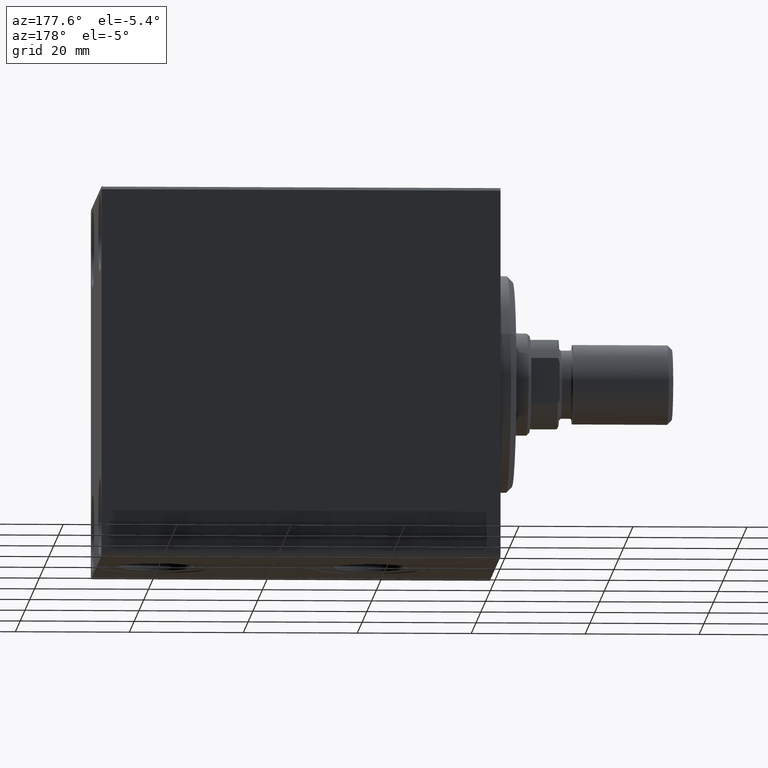
[diagram: clean part render]
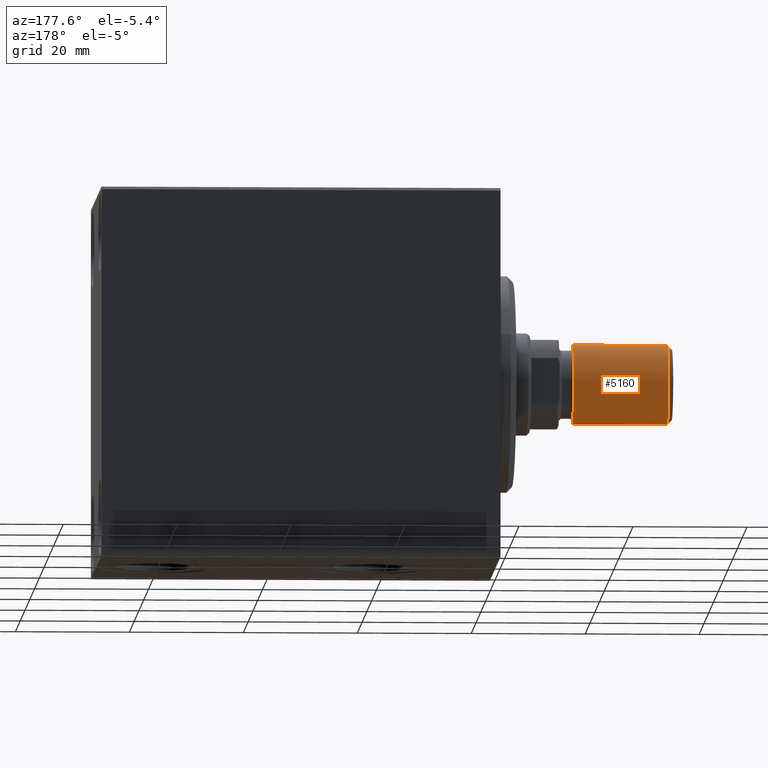
[diagram: same view with one face highlighted and labeled with its STEP entity id]
A machine part, auxiliary view. The second image highlights one B-rep face of the part: STEP entity #5160.
In plain terms, the highlighted cylindrical surface (partial cylindrical patch) has radius 7 mm, axis along (-1, -0, 0).
Its self-contained STEP definition (entity closure, byte-faithful):
#1554 = VERTEX_POINT ( 'NONE', #12833 ) ;
#2514 = DIRECTION ( 'NONE',  ( -0.000000000000000000, -0.000000000000000000, -1.000000000000000000 ) ) ;
#3478 = CARTESIAN_POINT ( 'NONE',  ( -7.000000000000000000, 0.000000000000000000, 0.7999999999999986011 ) ) ;
#4882 = CYLINDRICAL_SURFACE ( 'NONE', #6422, 7.000000000000000000 ) ;
#5101 = DIRECTION ( 'NONE',  ( -0.000000000000000000, -0.000000000000000000, -1.000000000000000000 ) ) ;
#5160 = ADVANCED_FACE ( 'NONE', ( #15218 ), #4882, .T. ) ;
#6422 = AXIS2_PLACEMENT_3D ( 'NONE', #42613, #5101, #42830 ) ;
#6688 = CARTESIAN_POINT ( 'NONE',  ( 7.000000000000000000, 8.572527594031473190E-16, 0.7999999999999986011 ) ) ;
#6759 = VECTOR ( 'NONE', #2514, 1000.000000000000000 ) ;
#10755 = LINE ( 'NONE', #32078, #41043 ) ;
#10816 = VERTEX_POINT ( 'NONE', #6688 ) ;
#11733 = ORIENTED_EDGE ( 'NONE', *, *, #17541, .T. ) ;
#11766 = DIRECTION ( 'NONE',  ( 1.000000000000000000, 0.000000000000000000, 0.000000000000000000 ) ) ;
#12833 = CARTESIAN_POINT ( 'NONE',  ( -7.000000000000000000, 0.000000000000000000, 17.50000000000000000 ) ) ;
#13066 = LINE ( 'NONE', #33042, #6759 ) ;
#14234 = ORIENTED_EDGE ( 'NONE', *, *, #17993, .F. ) ;
#14625 = CIRCLE ( 'NONE', #38261, 7.000000000000000000 ) ;
#15218 = FACE_OUTER_BOUND ( 'NONE', #15256, .T. ) ;
#15256 = EDGE_LOOP ( 'NONE', ( #30473, #27243, #11733, #14234 ) ) ;
#17541 = EDGE_CURVE ( 'NONE', #10816, #42180, #14625, .T. ) ;
#17993 = EDGE_CURVE ( 'NONE', #1554, #42180, #10755, .T. ) ;
#18527 = DIRECTION ( 'NONE',  ( 0.000000000000000000, 0.000000000000000000, 1.000000000000000000 ) ) ;
#22872 = EDGE_CURVE ( 'NONE', #42564, #10816, #13066, .T. ) ;
#25129 = DIRECTION ( 'NONE',  ( -0.000000000000000000, -0.000000000000000000, -1.000000000000000000 ) ) ;
#27243 = ORIENTED_EDGE ( 'NONE', *, *, #22872, .T. ) ;
#28615 = DIRECTION ( 'NONE',  ( 1.000000000000000000, 0.000000000000000000, 0.000000000000000000 ) ) ;
#30473 = ORIENTED_EDGE ( 'NONE', *, *, #37048, .F. ) ;
#31501 = DIRECTION ( 'NONE',  ( -0.000000000000000000, -0.000000000000000000, 1.000000000000000000 ) ) ;
#31878 = AXIS2_PLACEMENT_3D ( 'NONE', #31978, #18527, #28615 ) ;
#31978 = CARTESIAN_POINT ( 'NONE',  ( 0.000000000000000000, 0.000000000000000000, 17.50000000000000000 ) ) ;
#32078 = CARTESIAN_POINT ( 'NONE',  ( -7.000000000000000000, 0.000000000000000000, 17.50000000000000000 ) ) ;
#33042 = CARTESIAN_POINT ( 'NONE',  ( 7.000000000000000000, 8.572527594031473190E-16, 17.50000000000000000 ) ) ;
#37048 = EDGE_CURVE ( 'NONE', #42564, #1554, #44065, .T. ) ;
#38261 = AXIS2_PLACEMENT_3D ( 'NONE', #39374, #31501, #11766 ) ;
#39374 = CARTESIAN_POINT ( 'NONE',  ( 0.000000000000000000, 0.000000000000000000, 0.7999999999999986011 ) ) ;
#41043 = VECTOR ( 'NONE', #25129, 1000.000000000000000 ) ;
#42180 = VERTEX_POINT ( 'NONE', #3478 ) ;
#42564 = VERTEX_POINT ( 'NONE', #44472 ) ;
#42613 = CARTESIAN_POINT ( 'NONE',  ( 0.000000000000000000, 0.000000000000000000, 17.50000000000000000 ) ) ;
#42830 = DIRECTION ( 'NONE',  ( -1.000000000000000000, 0.000000000000000000, 0.000000000000000000 ) ) ;
#44065 = CIRCLE ( 'NONE', #31878, 7.000000000000000000 ) ;
#44472 = CARTESIAN_POINT ( 'NONE',  ( 7.000000000000000000, 8.572527594031473190E-16, 17.50000000000000000 ) ) ;